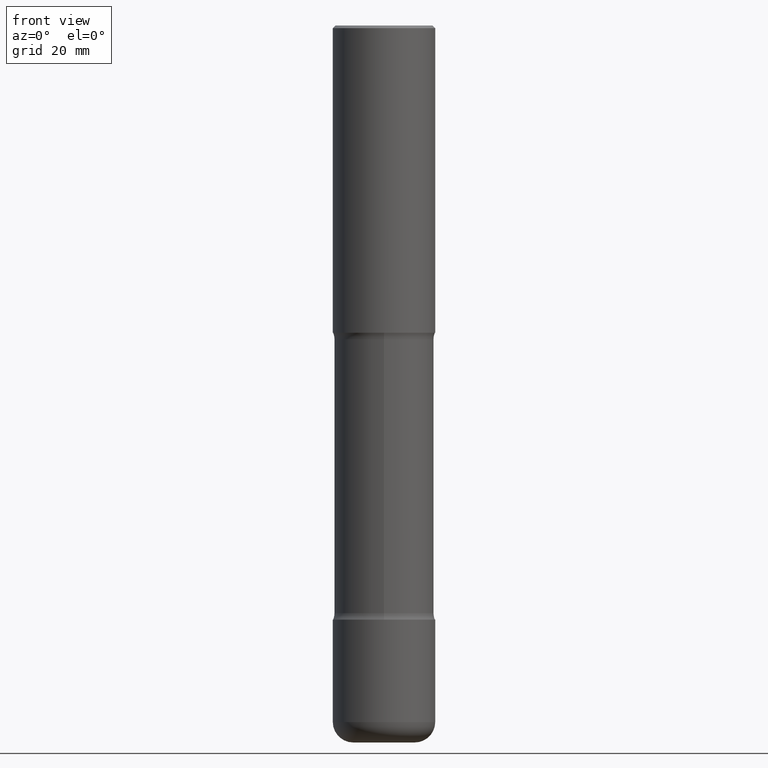
[diagram: clean part render]
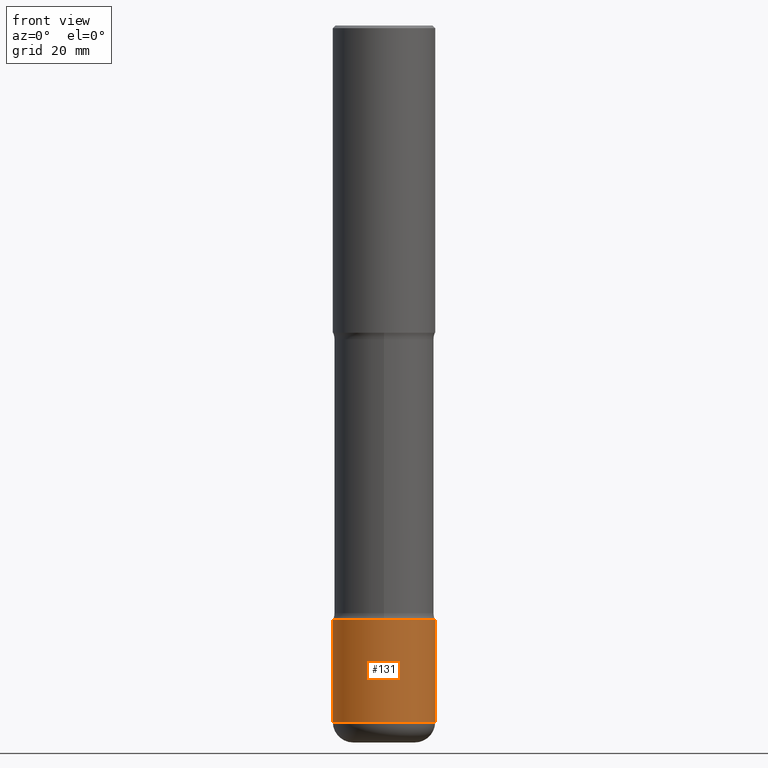
[diagram: same view with one face highlighted and labeled with its STEP entity id]
A machine part, front view. The second image highlights one B-rep face of the part: STEP entity #131.
In plain terms, the highlighted cylindrical surface (partial cylindrical patch) has radius 10 mm, axis along (-0, 0, 1).
Its self-contained STEP definition (entity closure, byte-faithful):
#13 = VECTOR ( 'NONE', #431, 39.37007874015748143 ) ;
#22 = DIRECTION ( 'NONE',  ( -2.445468806185136597E-29, 3.491481338843145583E-15, 1.000000000000000000 ) ) ;
#49 = AXIS2_PLACEMENT_3D ( 'NONE', #158, #342, #269 ) ;
#80 = LINE ( 'NONE', #383, #13 ) ;
#83 = EDGE_CURVE ( 'NONE', #451, #533, #273, .T. ) ;
#85 = AXIS2_PLACEMENT_3D ( 'NONE', #514, #115, #545 ) ;
#97 = EDGE_CURVE ( 'NONE', #161, #533, #167, .T. ) ;
#114 = DIRECTION ( 'NONE',  ( 1.000000000000000000, -6.982962677686266711E-15, 4.876176775795935793E-29 ) ) ;
#115 = DIRECTION ( 'NONE',  ( -2.445468806185136597E-29, 3.491481338843145583E-15, 1.000000000000000000 ) ) ;
#131 = ADVANCED_FACE ( 'NONE', ( #328 ), #301, .T. ) ;
#138 = CARTESIAN_POINT ( 'NONE',  ( 0.3937000000000004940, -2.749192406205086766E-15, 1.919750796630862414E-29 ) ) ;
#149 = EDGE_CURVE ( 'NONE', #156, #161, #80, .T. ) ;
#150 = CARTESIAN_POINT ( 'NONE',  ( -0.3937000000000004385, -1.452243557877779036E-14, -4.566900000000000404 ) ) ;
#156 = VERTEX_POINT ( 'NONE', #295 ) ;
#158 = CARTESIAN_POINT ( 'NONE',  ( 1.309377362895707575E-28, -1.869443853256785386E-14, -5.354300000000000281 ) ) ;
#159 = AXIS2_PLACEMENT_3D ( 'NONE', #505, #22, #114 ) ;
#161 = VERTEX_POINT ( 'NONE', #150 ) ;
#167 = CIRCLE ( 'NONE', #85, 0.3937000000000004385 ) ;
#236 = ORIENTED_EDGE ( 'NONE', *, *, #511, .T. ) ;
#269 = DIRECTION ( 'NONE',  ( 1.000000000000000000, -6.982962677686269866E-15, 0.000000000000000000 ) ) ;
#273 = LINE ( 'NONE', #138, #430 ) ;
#295 = CARTESIAN_POINT ( 'NONE',  ( -0.3937000000000001609, -1.589703178188033670E-14, -5.354300000000000281 ) ) ;
#301 = CYLINDRICAL_SURFACE ( 'NONE', #159, 0.3937000000000004940 ) ;
#304 = ORIENTED_EDGE ( 'NONE', *, *, #149, .F. ) ;
#305 = ORIENTED_EDGE ( 'NONE', *, *, #83, .T. ) ;
#328 = FACE_OUTER_BOUND ( 'NONE', #439, .T. ) ;
#336 = DIRECTION ( 'NONE',  ( -2.445468806185136877E-29, 3.491481338843145188E-15, 1.000000000000000000 ) ) ;
#342 = DIRECTION ( 'NONE',  ( -2.445468806185136597E-29, 3.491481338843145583E-15, 1.000000000000000000 ) ) ;
#374 = CIRCLE ( 'NONE', #49, 0.3937000000000004940 ) ;
#383 = CARTESIAN_POINT ( 'NONE',  ( -0.3937000000000004940, 2.797406750687517942E-15, -1.936584745033358697E-29 ) ) ;
#387 = CARTESIAN_POINT ( 'NONE',  ( 0.3937000000000004385, -1.869443853256785070E-14, -4.566900000000000404 ) ) ;
#389 = ORIENTED_EDGE ( 'NONE', *, *, #97, .F. ) ;
#430 = VECTOR ( 'NONE', #336, 39.37007874015748143 ) ;
#431 = DIRECTION ( 'NONE',  ( -2.445468806185136877E-29, 3.491481338843145188E-15, 1.000000000000000000 ) ) ;
#439 = EDGE_LOOP ( 'NONE', ( #304, #236, #305, #389 ) ) ;
#442 = CARTESIAN_POINT ( 'NONE',  ( 0.3937000000000001609, -2.144363093877294338E-14, -5.354300000000000281 ) ) ;
#451 = VERTEX_POINT ( 'NONE', #442 ) ;
#505 = CARTESIAN_POINT ( 'NONE',  ( 0.000000000000000000, 0.000000000000000000, 0.000000000000000000 ) ) ;
#511 = EDGE_CURVE ( 'NONE', #156, #451, #374, .T. ) ;
#514 = CARTESIAN_POINT ( 'NONE',  ( 1.116821149096690103E-28, -1.594524612636276117E-14, -4.566900000000000404 ) ) ;
#533 = VERTEX_POINT ( 'NONE', #387 ) ;
#545 = DIRECTION ( 'NONE',  ( 1.000000000000000000, -6.982962677686270655E-15, 0.000000000000000000 ) ) ;